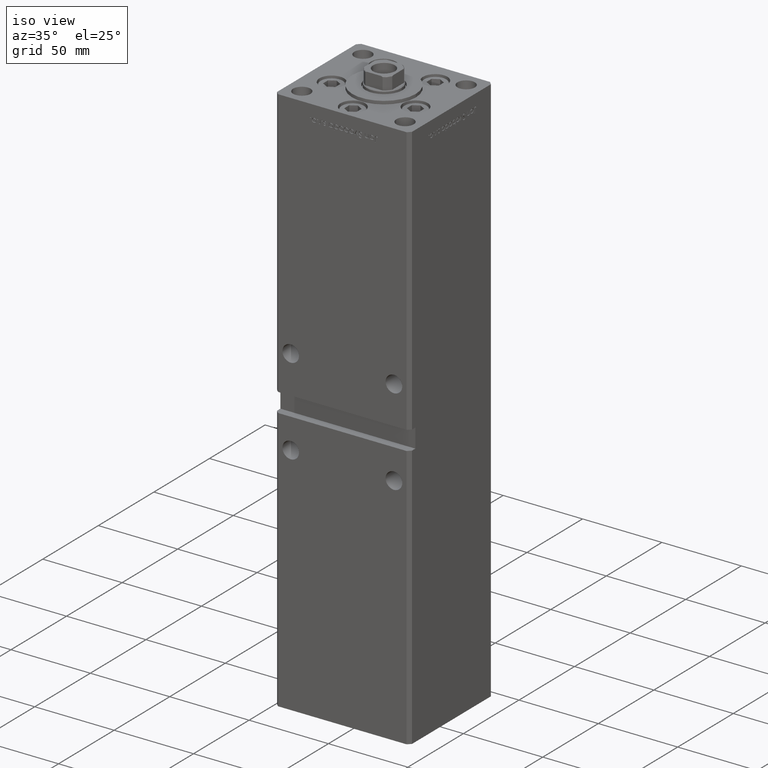
[diagram: clean part render]
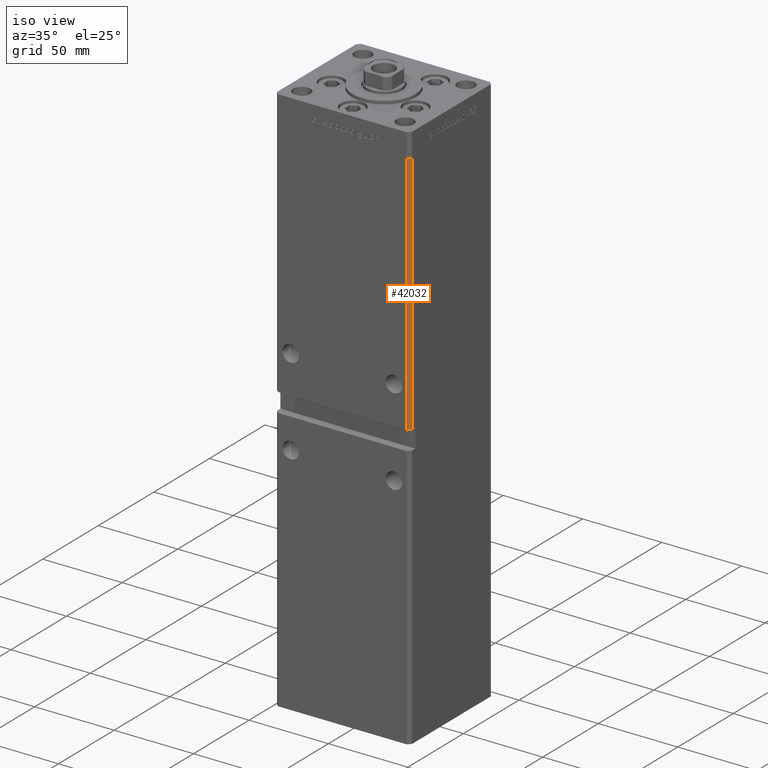
[diagram: same view with one face highlighted and labeled with its STEP entity id]
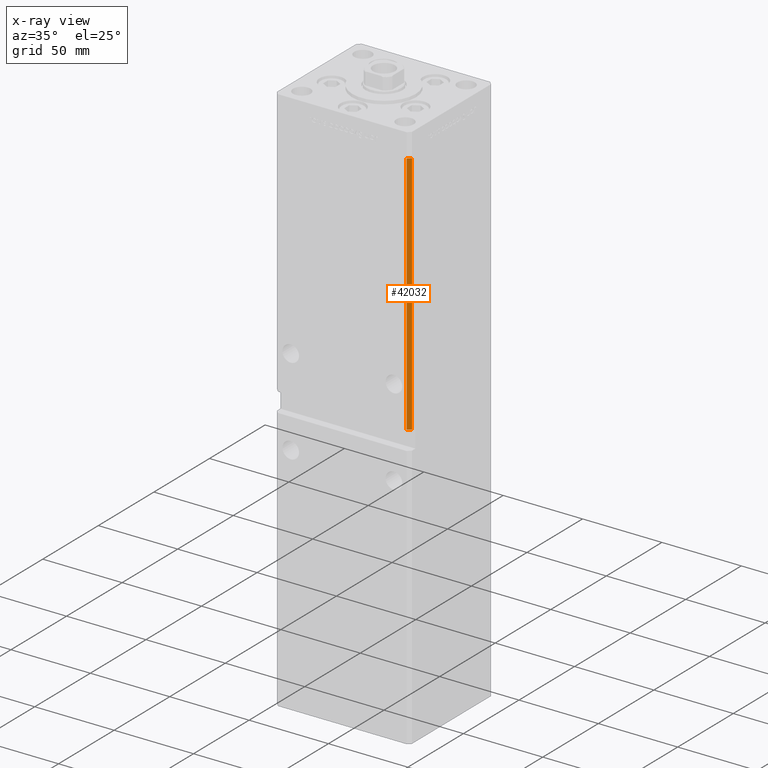
[diagram: x-ray of the same camera — body ghosted, the highlighted face saturated]
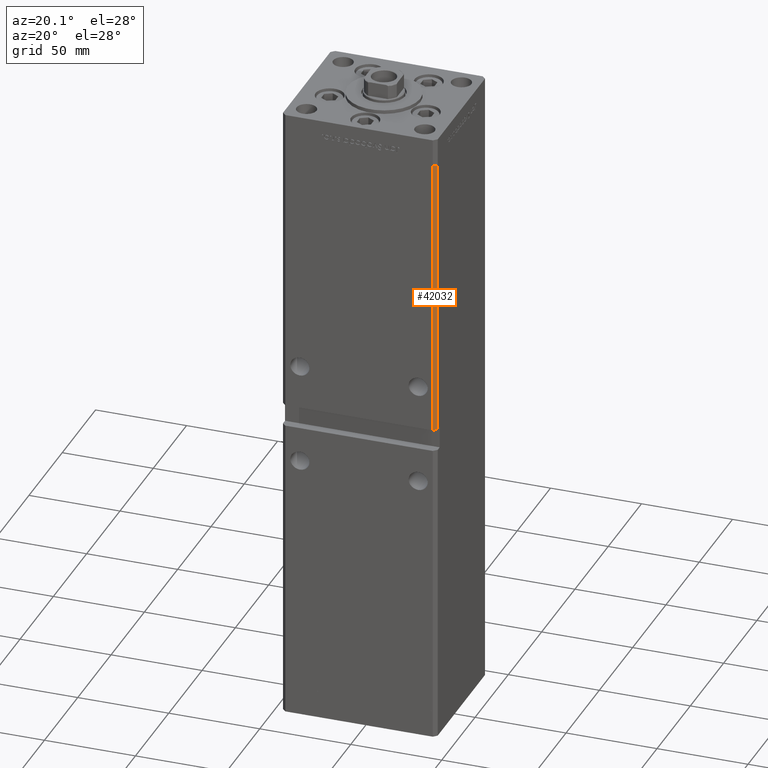
[diagram: same view with one face highlighted and labeled with its STEP entity id]
A machine part, iso view. The second image highlights one B-rep face of the part: STEP entity #42032.
The next image is the same camera in x-ray: the body ghosted, the highlighted face saturated — about 0% of this face is hidden behind the body in this view.
A second angle (auxiliary view) of the same face is appended — the face is thin or edge-on in the first view.
In plain terms, the highlighted planar face has unit normal (0.7071, -0.7071, 0).
Its self-contained STEP definition (entity closure, byte-faithful):
#1660 = LINE ( 'NONE', #18049, #21971 ) ;
#2838 = ORIENTED_EDGE ( 'NONE', *, *, #34206, .F. ) ;
#5652 = DIRECTION ( 'NONE',  ( 0.7071067811865475727, -0.7071067811865475727, 0.000000000000000000 ) ) ;
#5921 = PLANE ( 'NONE',  #26117 ) ;
#6778 = CARTESIAN_POINT ( 'NONE',  ( 42.49999999999998579, -35.50000000000000711, 318.5000000000000000 ) ) ;
#6992 = EDGE_LOOP ( 'NONE', ( #2838, #46567, #23062, #42337 ) ) ;
#9100 = DIRECTION ( 'NONE',  ( -0.7071067811865474617, -0.7071067811865474617, 0.000000000000000000 ) ) ;
#12686 = DIRECTION ( 'NONE',  ( -0.7071067811865474617, -0.7071067811865474617, 0.000000000000000000 ) ) ;
#16564 = CARTESIAN_POINT ( 'NONE',  ( 40.49999999999998579, -37.50000000000000711, 318.5000000000000000 ) ) ;
#16700 = LINE ( 'NONE', #21016, #34583 ) ;
#17383 = VECTOR ( 'NONE', #9100, 1000.000000000000114 ) ;
#18049 = CARTESIAN_POINT ( 'NONE',  ( 42.49999999999998579, -35.50000000000000711, 318.5000000000000000 ) ) ;
#20989 = CARTESIAN_POINT ( 'NONE',  ( 40.49999999999999289, -37.50000000000000711, 164.0000000000000568 ) ) ;
#21016 = CARTESIAN_POINT ( 'NONE',  ( 42.49999999999998579, -35.50000000000000711, 164.0000000000000568 ) ) ;
#21457 = LINE ( 'NONE', #29533, #17383 ) ;
#21783 = DIRECTION ( 'NONE',  ( 0.7071067811865474617, 0.7071067811865474617, 0.000000000000000000 ) ) ;
#21971 = VECTOR ( 'NONE', #34444, 1000.000000000000000 ) ;
#23062 = ORIENTED_EDGE ( 'NONE', *, *, #37720, .T. ) ;
#23408 = CARTESIAN_POINT ( 'NONE',  ( 42.49999999999999289, -35.50000000000000711, 164.0000000000000568 ) ) ;
#25228 = VERTEX_POINT ( 'NONE', #20989 ) ;
#25291 = FACE_OUTER_BOUND ( 'NONE', #6992, .T. ) ;
#25793 = VECTOR ( 'NONE', #44534, 1000.000000000000000 ) ;
#26117 = AXIS2_PLACEMENT_3D ( 'NONE', #29601, #5652, #21783 ) ;
#27352 = EDGE_CURVE ( 'NONE', #45515, #25228, #52358, .T. ) ;
#29533 = CARTESIAN_POINT ( 'NONE',  ( 42.49999999999998579, -35.50000000000000711, 318.5000000000000000 ) ) ;
#29601 = CARTESIAN_POINT ( 'NONE',  ( 42.49999999999998579, -35.50000000000000711, 318.5000000000000000 ) ) ;
#31203 = CARTESIAN_POINT ( 'NONE',  ( 40.49999999999998579, -37.50000000000000711, 318.5000000000000000 ) ) ;
#34206 = EDGE_CURVE ( 'NONE', #48752, #25228, #16700, .T. ) ;
#34444 = DIRECTION ( 'NONE',  ( -0.000000000000000000, -0.000000000000000000, -1.000000000000000000 ) ) ;
#34583 = VECTOR ( 'NONE', #12686, 1000.000000000000114 ) ;
#37720 = EDGE_CURVE ( 'NONE', #40383, #45515, #21457, .T. ) ;
#40383 = VERTEX_POINT ( 'NONE', #6778 ) ;
#42032 = ADVANCED_FACE ( 'NONE', ( #25291 ), #5921, .T. ) ;
#42337 = ORIENTED_EDGE ( 'NONE', *, *, #27352, .T. ) ;
#44534 = DIRECTION ( 'NONE',  ( -0.000000000000000000, -0.000000000000000000, -1.000000000000000000 ) ) ;
#45515 = VERTEX_POINT ( 'NONE', #31203 ) ;
#46567 = ORIENTED_EDGE ( 'NONE', *, *, #51801, .F. ) ;
#48752 = VERTEX_POINT ( 'NONE', #23408 ) ;
#51801 = EDGE_CURVE ( 'NONE', #40383, #48752, #1660, .T. ) ;
#52358 = LINE ( 'NONE', #16564, #25793 ) ;